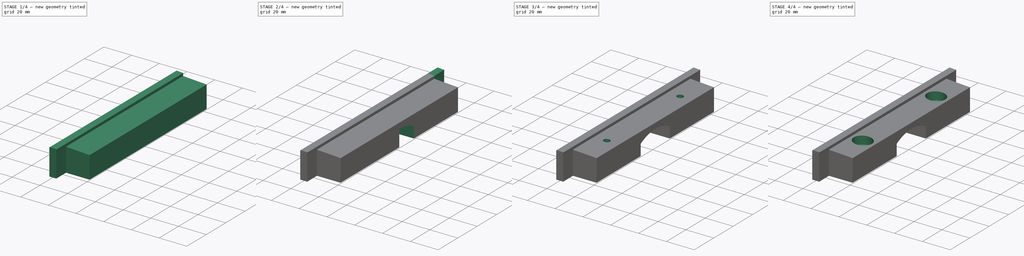
[diagram: build sequence overview — one tinted view per stage of 4, left to right]
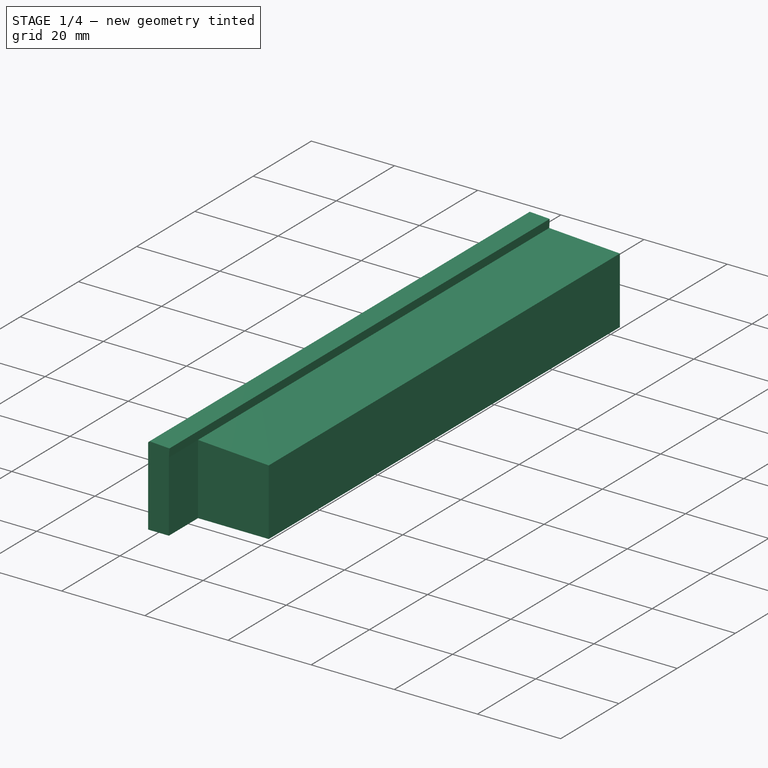
[diagram: stage 1 of 4 — iso view after this stage's code; geometry added in this stage tinted green]
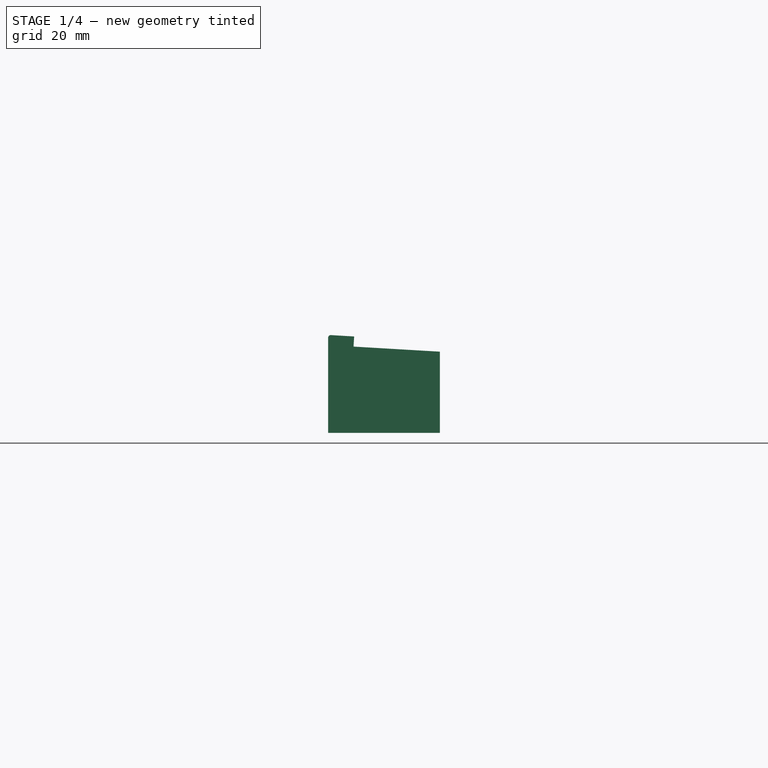
[diagram: stage 1 of 4 — front view after this stage's code; geometry added in this stage tinted green]
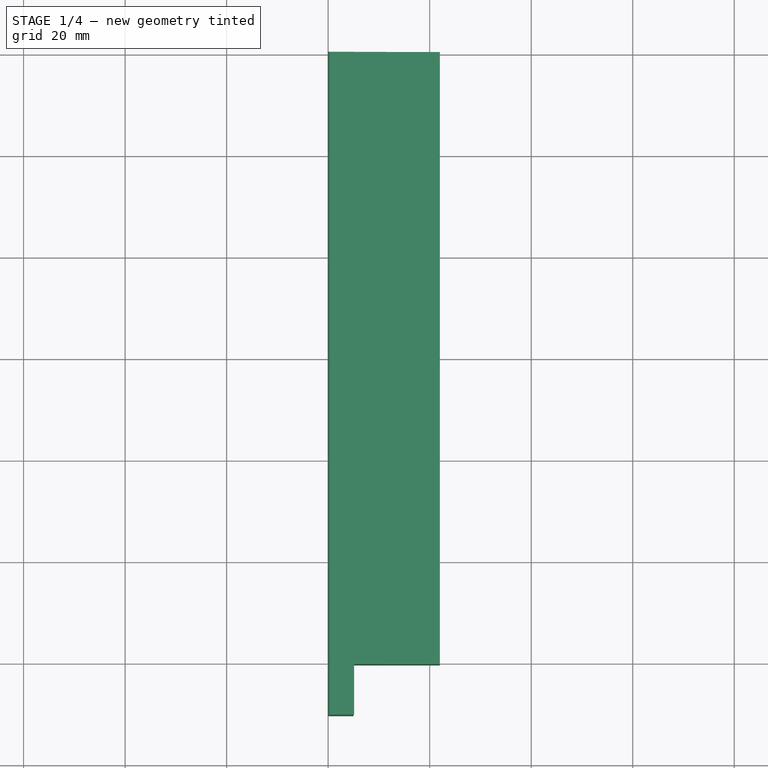
[diagram: stage 1 of 4 — top view after this stage's code; geometry added in this stage tinted green]
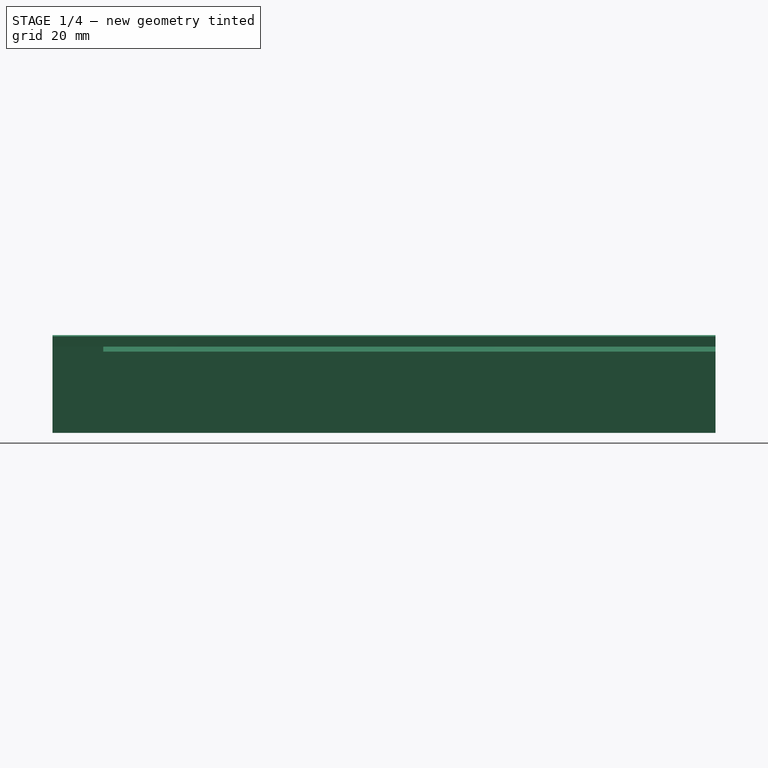
[diagram: stage 1 of 4 — right view after this stage's code; geometry added in this stage tinted green]
FCSTD DOCUMENT  (FreeCAD 0.18RUnknown)
Label: upper_brain_foot
License: All rights reserved
LicenseURL: http://en.wikipedia.org/wiki/All_rights_reserved
objects: Sketcher::SketchObject×6, PartDesign::Mirrored×4, PartDesign::Pocket×3, PartDesign::Pad×2, PartDesign::Plane×1, PartDesign::Body×1
note: 22 computed .brp shape members not serialized (recipe doc carries the construction recipe); baked Part::Feature solids carry a one-line shape summary decoded from their .brp

FEATURE [Sketcher::SketchObject] Sketch
  MapMode = 5
  Placement = pos=(0,0,0) rot=(1,0,0;1.5708rad)
  Support = -> [XZ_Plane]
  sketch-geometry (7):
    g0: LineSegment StartX=0 StartY=0 StartZ=0 EndX=0 EndY=18.7673 EndZ=0
    g1: LineSegment StartX=0.529353 StartY=19.2664 StartZ=0 EndX=5.11744 EndY=18.9965 EndZ=0
    g2: LineSegment StartX=5.11744 StartY=18.9965 StartZ=0 EndX=5 EndY=17 EndZ=0
    g3: LineSegment StartX=5 StartY=17 StartZ=0 EndX=22 EndY=16 EndZ=0
    g4: LineSegment StartX=22 StartY=16 StartZ=0 EndX=22 EndY=0 EndZ=0
    g5: LineSegment StartX=22 StartY=0 StartZ=0 EndX=0 EndY=0 EndZ=0
    g6: ArcOfCircle CenterX=0.5 CenterY=18.7673 CenterZ=0 NormalX=0 NormalY=0 NormalZ=1 AngleXU=0 Radius=0.5 StartAngle=1.51206 EndAngle=3.14159
  constraints (22):
    c: PointOnObject(g0,g-2)
    c: PointOnObject(g0,g-1)
    c: Horizontal(g5)
    c: Vertical(g0)
    c: Coincident(g5,g0)
    c: Vertical(g4)
    c: Coincident(g2,g3)
    c: Coincident(g5,g4)
    c: Coincident(g4,g3)
    c: Parallel(g1,g3)
    c: Angle(g3,g2) = 1.5708
    c: Coincident(g2,g1)
    c: Coincident(g0,g6)
    c: Coincident(g1,g6)
    c: Radius(g6) = 0.5
    c: Distance(g2) = 2
    c: DistanceY(g4,g3) = 16
    c: DistanceY(g0,g2) = 17
    c: DistanceX(g2,g3) = 17
    c: Tangent(g6,g0)
    c: DistanceX(g0,g4) = 22
    c: Tangent(g6,g1)
FEATURE [PartDesign::Pad] Pad
  Length = 60.3
  Length2 = 60.3
  Placement = pos=(0,0,0) rot=(1,0,0;1.5708rad)
  Profile = -> Sketch
  Type = 4
FEATURE [Sketcher::SketchObject] Sketch001  label="Core"
  MapMode = 5
  Placement = pos=(0,-60.3,4.02e-14) rot=(1,0,0;1.5708rad)
  Support = -> [Pad]
FEATURE [Sketcher::SketchObject] Sketch002  label="Flankenstein"
  ExternalGeometry = -> [Pad]
  MapMode = 5
  Placement = pos=(0,-60.3,4.02e-14) rot=(1,0,0;1.5708rad)
  Support = -> [Pad]
  sketch-geometry (6):
    g0: LineSegment StartX=2.1914e-11 StartY=18.7673 StartZ=0 EndX=0 EndY=0 EndZ=0
    g1: LineSegment StartX=0 StartY=0 StartZ=0 EndX=5 EndY=0 EndZ=0
    g2: LineSegment StartX=5 StartY=0 StartZ=0 EndX=5 EndY=17 EndZ=0
    g3: LineSegment StartX=5 StartY=17 StartZ=0 EndX=5.11744 EndY=18.9965 EndZ=0
    g4: LineSegment StartX=5.11744 StartY=18.9965 StartZ=0 EndX=0.529353 EndY=19.2664 EndZ=0
    g5: ArcOfCircle CenterX=0.5 CenterY=18.7673 CenterZ=0 NormalX=0 NormalY=0 NormalZ=1 AngleXU=0 Radius=0.5 StartAngle=1.51206 EndAngle=3.14159
  constraints (14):
    c: Coincident(g0,g-5)
    c: Coincident(g0,g-1)
    c: Coincident(g1,g0)
    c: Coincident(g-4,g2)
    c: Coincident(g3,g2)
    c: Coincident(g3,g-4)
    c: Coincident(g4,g3)
    c: Coincident(g4,g-3)
    c: Coincident(g5,g0)
    c: Coincident(g5,g4)
    c: Radius(g5) = 0.5
    c: Vertical(g2)
    c: PointOnObject(g2,g-6)
    c: Coincident(g1,g2)
FEATURE [PartDesign::Pad] Pad001  label="Flankenpad"
  BaseFeature = -> Pad
  Length = 10
  Length2 = 100
  Placement = pos=(0,0,0) rot=(1,0,0;1.5708rad)
  Profile = -> Sketch002
  Type = 0
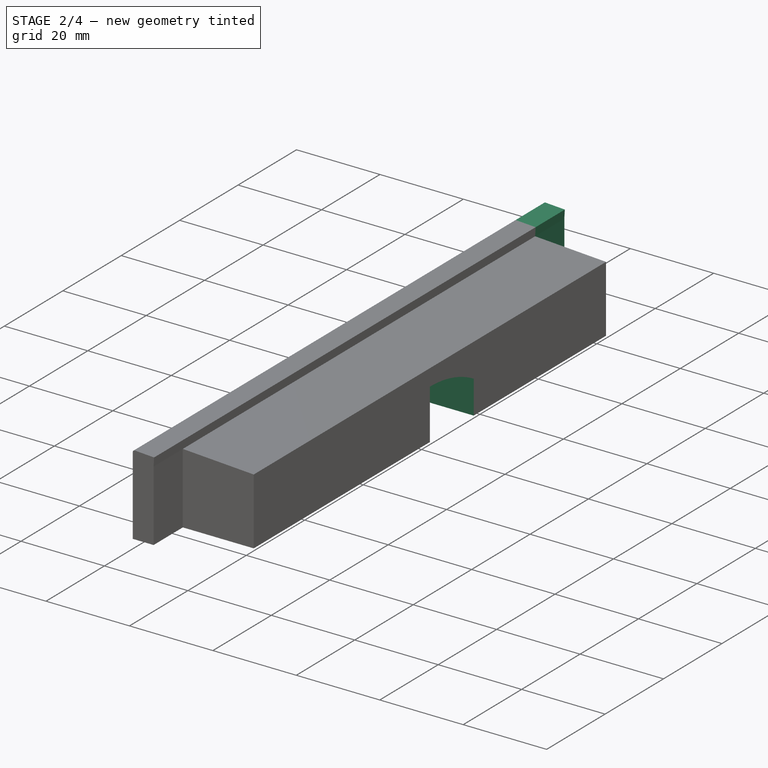
[diagram: stage 2 of 4 — iso view after this stage's code; geometry added in this stage tinted green]
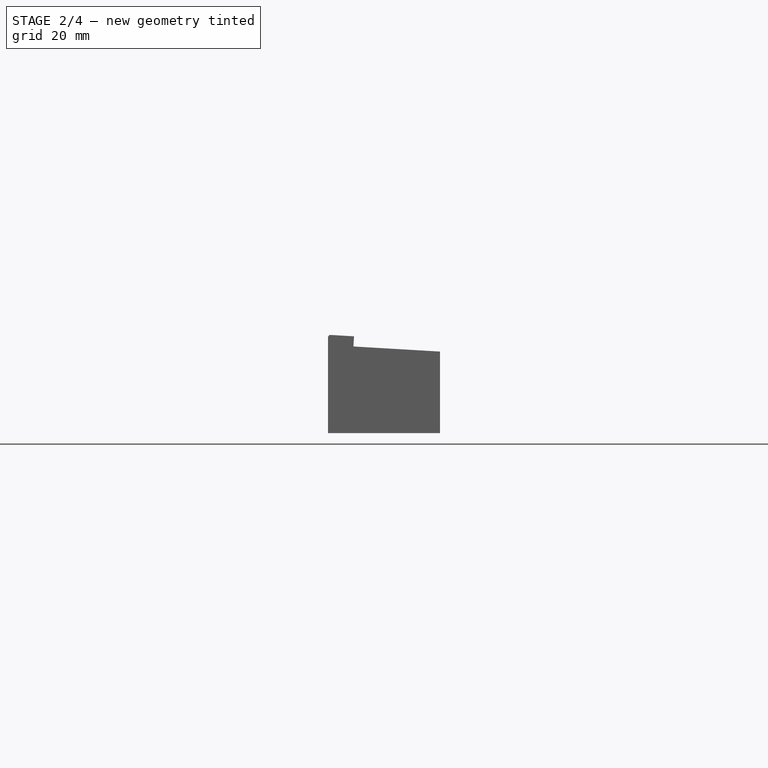
[diagram: stage 2 of 4 — front view after this stage's code; geometry added in this stage tinted green]
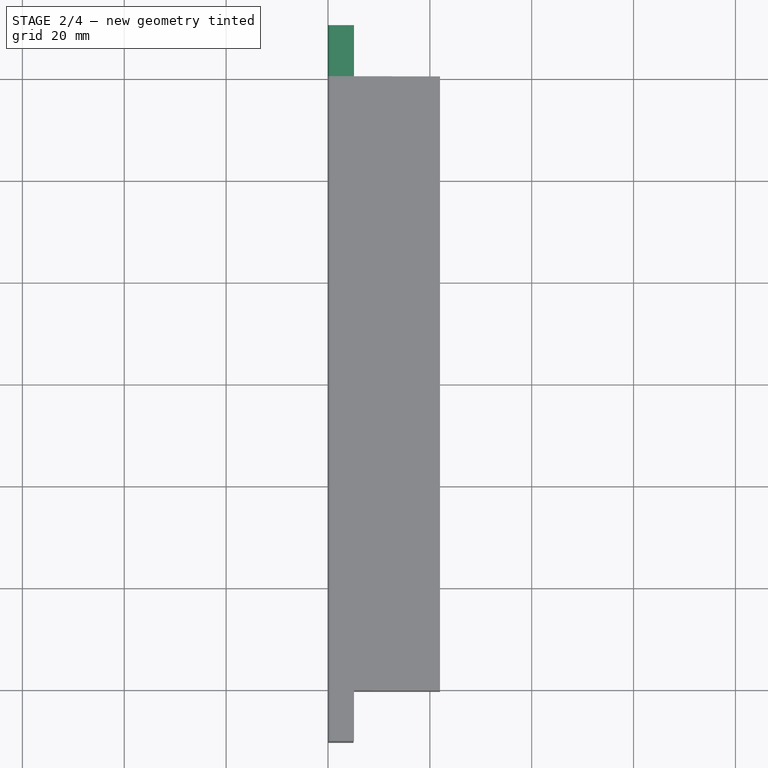
[diagram: stage 2 of 4 — top view after this stage's code; geometry added in this stage tinted green]
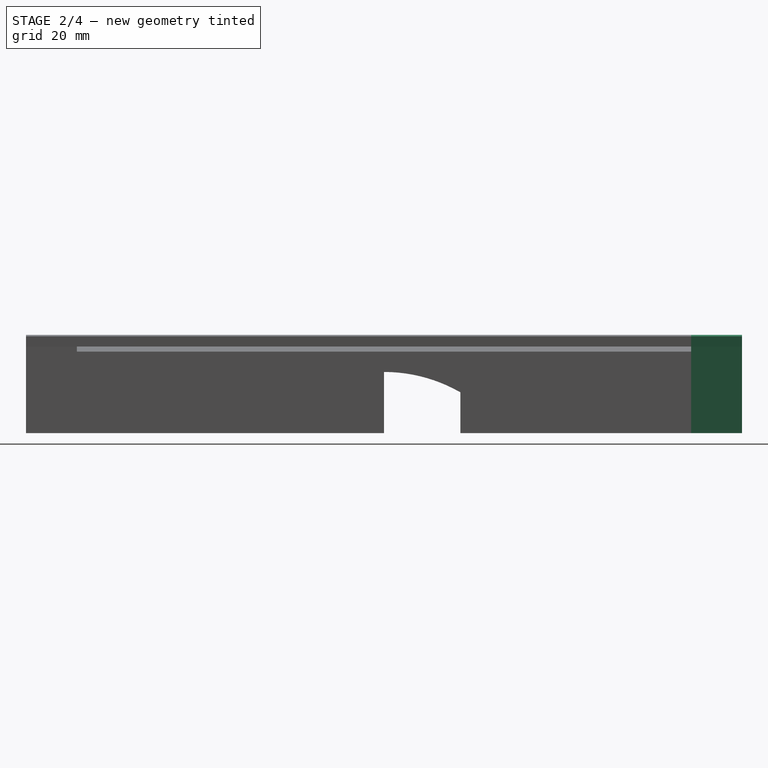
[diagram: stage 2 of 4 — right view after this stage's code; geometry added in this stage tinted green]
FEATURE [PartDesign::Mirrored] Mirrored
  BaseFeature = -> Pad001
  MirrorPlane = -> XZ_Plane
  Originals = -> [Pad001]
  Placement = pos=(0,0,0) rot=(1,0,0;1.5708rad)
FEATURE [Sketcher::SketchObject] Sketch004  label="Tunnel"
  MapMode = 5
  Placement = pos=(22,0,0) rot=(0.707107,0,0.707107;3.14159rad)
  Support = -> [Mirrored]
  sketch-geometry (5):
    g0: LineSegment StartX=0 StartY=-3.41437e-11 StartZ=0 EndX=0 EndY=-15 EndZ=0
    g1: LineSegment StartX=0 StartY=-15 StartZ=0 EndX=8 EndY=-15 EndZ=0
    g2: LineSegment StartX=0 StartY=-3.41437e-11 StartZ=0 EndX=12 EndY=-3.41437e-11 EndZ=0
    g3: ArcOfCircle CenterX=-18.1251 CenterY=1.65634e-05 CenterZ=0 NormalX=0 NormalY=0 NormalZ=1 AngleXU=0 Radius=30.1251 StartAngle=5.76198 EndAngle=6.28318
    g4: LineSegment [constr] StartX=12 StartY=-3.41437e-11 StartZ=0 EndX=12 EndY=-15 EndZ=0
  constraints (15):
    c: Coincident(g2,g0)
    c: Coincident(g0,g-1)
    c: Vertical(g0)
    c: Horizontal(g2)
    c: Horizontal(g1)
    c: Coincident(g1,g0)
    c: Coincident(g3,g1)
    c: Coincident(g3,g2)
    c: DistanceY(g0,g0) = 15
    c: DistanceX(g1,g1) = 8
    c: DistanceX(g2,g2) = 12
    c: Vertical(g4)
    c: Coincident(g4,g2)
    c: Tangent(g3,g4)
    c: DistanceY(g4,g4) = 15
FEATURE [PartDesign::Pocket] Pocket  label="TunnelPocket"
  BaseFeature = -> Mirrored
  Length = 0
  Length2 = 100
  Placement = pos=(0,0,0) rot=(1,0,0;1.5708rad)
  Profile = -> Sketch004
  Type = 1
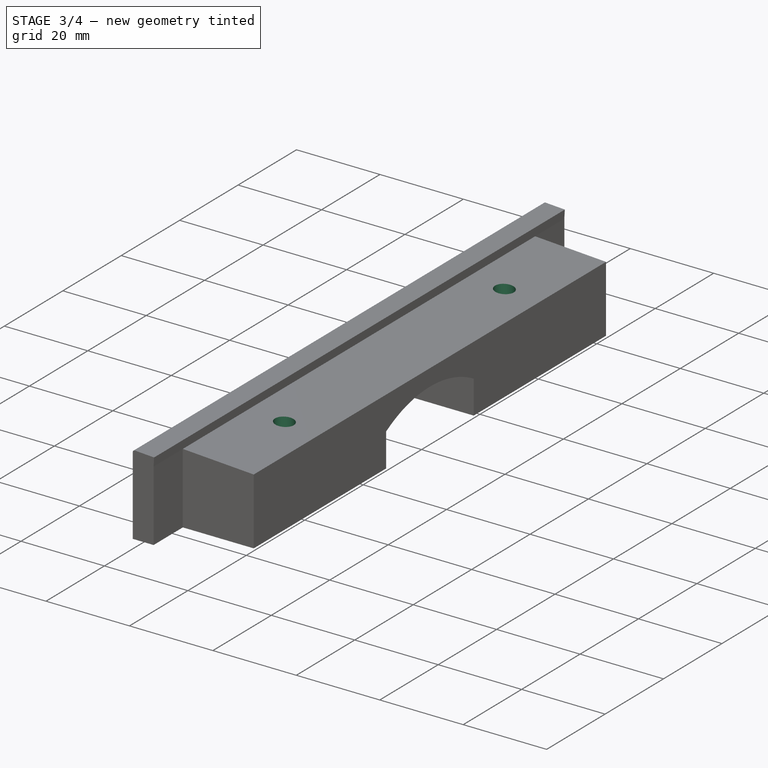
[diagram: stage 3 of 4 — iso view after this stage's code; geometry added in this stage tinted green]
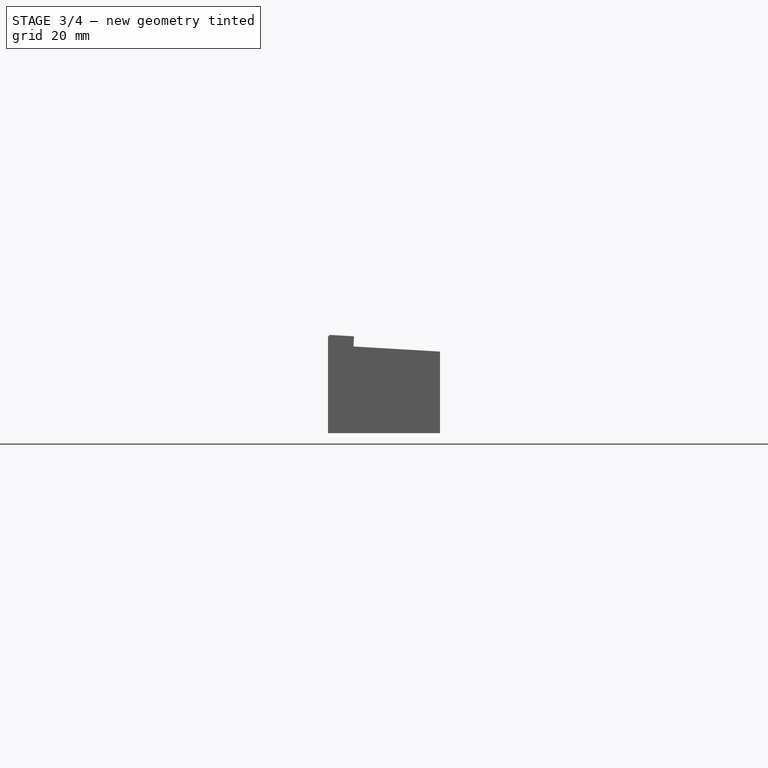
[diagram: stage 3 of 4 — front view after this stage's code; geometry added in this stage tinted green]
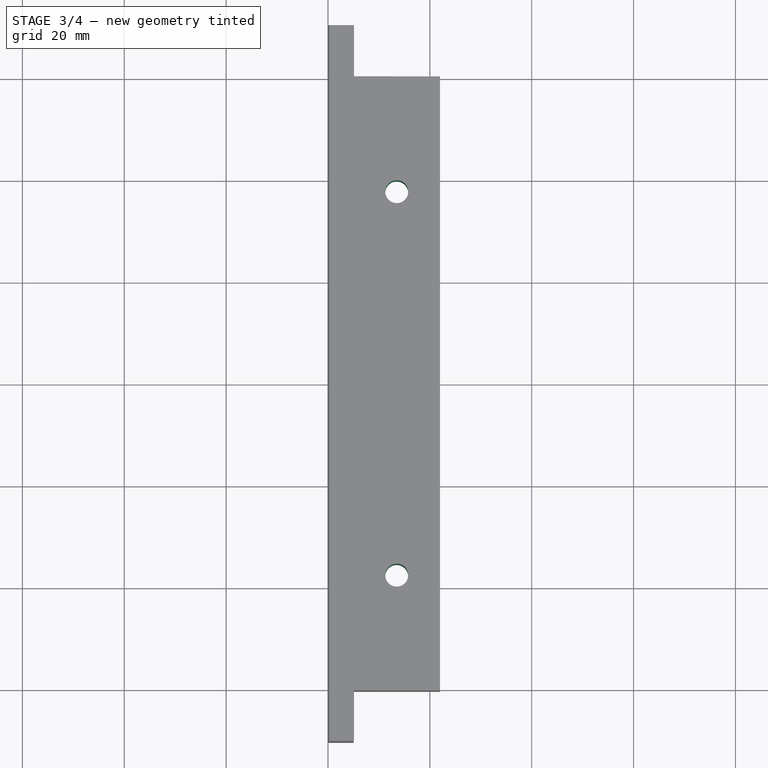
[diagram: stage 3 of 4 — top view after this stage's code; geometry added in this stage tinted green]
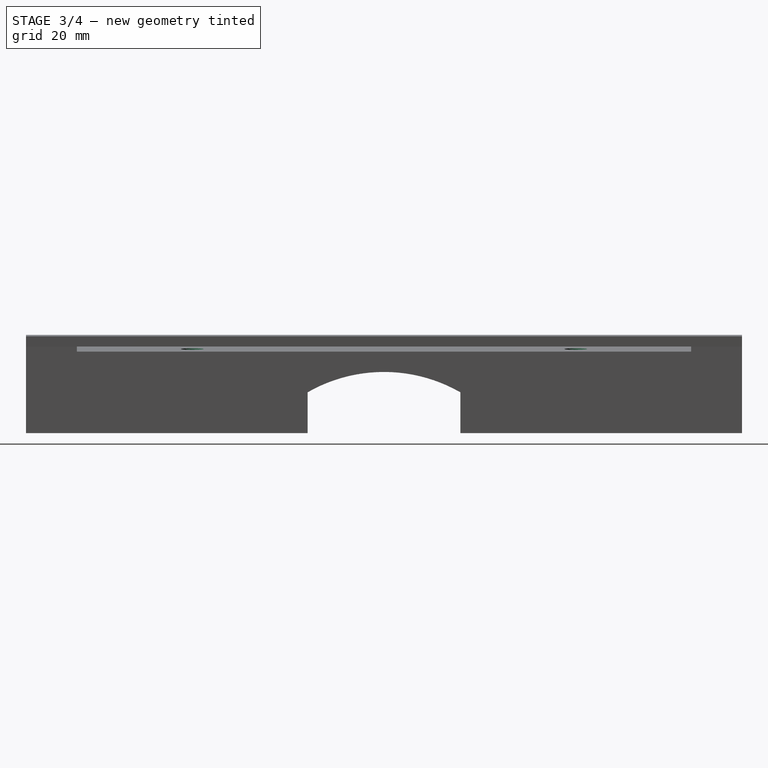
[diagram: stage 3 of 4 — right view after this stage's code; geometry added in this stage tinted green]
FEATURE [PartDesign::Mirrored] Mirrored001  label="MirroredTunnel"
  BaseFeature = -> Pocket
  MirrorPlane = -> XZ_Plane
  Originals = -> [Pocket]
  Placement = pos=(0,0,0) rot=(1,0,0;1.5708rad)
FEATURE [Sketcher::SketchObject] Sketch005  label="Skruvhal"
  ExternalGeometry = -> [Mirrored001]
  MapMode = 5
  Placement = pos=(0,0,0) rot=(1,0,0;3.14159rad)
  Support = -> [Mirrored001]
  sketch-geometry (4):
    g0: LineSegment [constr] StartX=5 StartY=60.3 StartZ=0 EndX=22 EndY=15 EndZ=0
    g1: LineSegment [constr] StartX=22 StartY=60.3 StartZ=0 EndX=5 EndY=15 EndZ=0
    g2: Circle CenterX=13.5 CenterY=37.65 CenterZ=0 NormalX=0 NormalY=0 NormalZ=1 AngleXU=0 Radius=2.25
    g3: LineSegment [constr] StartX=5 StartY=60.3 StartZ=0 EndX=5 EndY=15 EndZ=0
  constraints (10):
    c: Coincident(g0,g-4)
    c: Coincident(g1,g-3)
    c: PointOnObject(g2,g0)
    c: PointOnObject(g2,g1)
    c: Diameter(g2) = 4.5
    c: Coincident(g0,g-5)
    c: Vertical(g3)
    c: Coincident(g3,g0)
    c: PointOnObject(g3,g-4)
    c: Coincident(g1,g3)
FEATURE [PartDesign::Pocket] Pocket001  label="SkruvhalPocket"
  BaseFeature = -> Mirrored001
  Length = 0
  Length2 = 100
  Placement = pos=(0,0,0) rot=(1,0,0;1.5708rad)
  Profile = -> Sketch005
  Type = 3
  UpToFace = -> Mirrored001 [Face9]
FEATURE [PartDesign::Mirrored] Mirrored002  label="MirroredSkruvhal"
  BaseFeature = -> Pocket001
  MirrorPlane = -> XZ_Plane
  Originals = -> [Pocket001]
  Placement = pos=(0,0,0) rot=(1,0,0;1.5708rad)
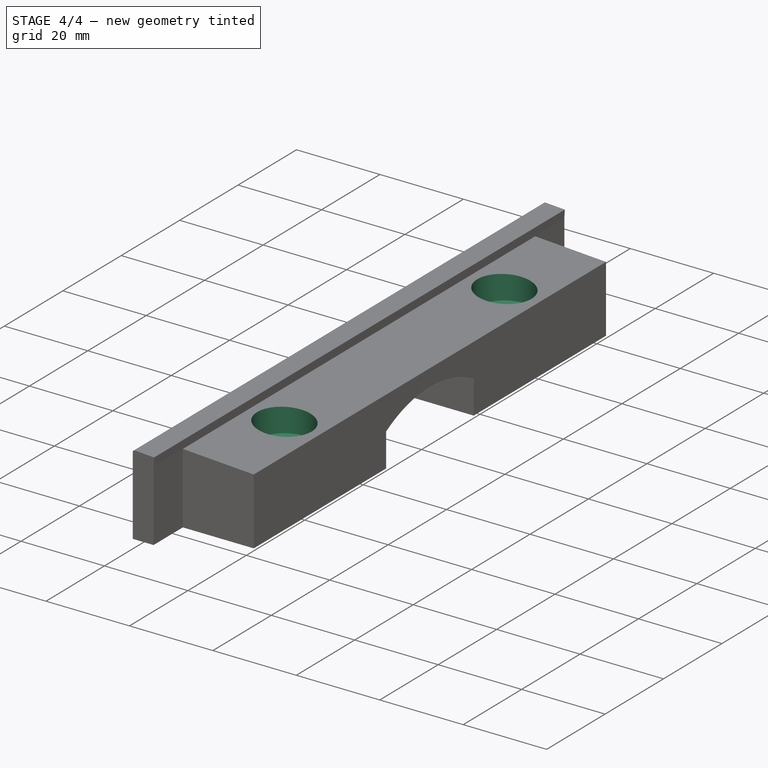
[diagram: stage 4 of 4 — iso view after this stage's code; geometry added in this stage tinted green]
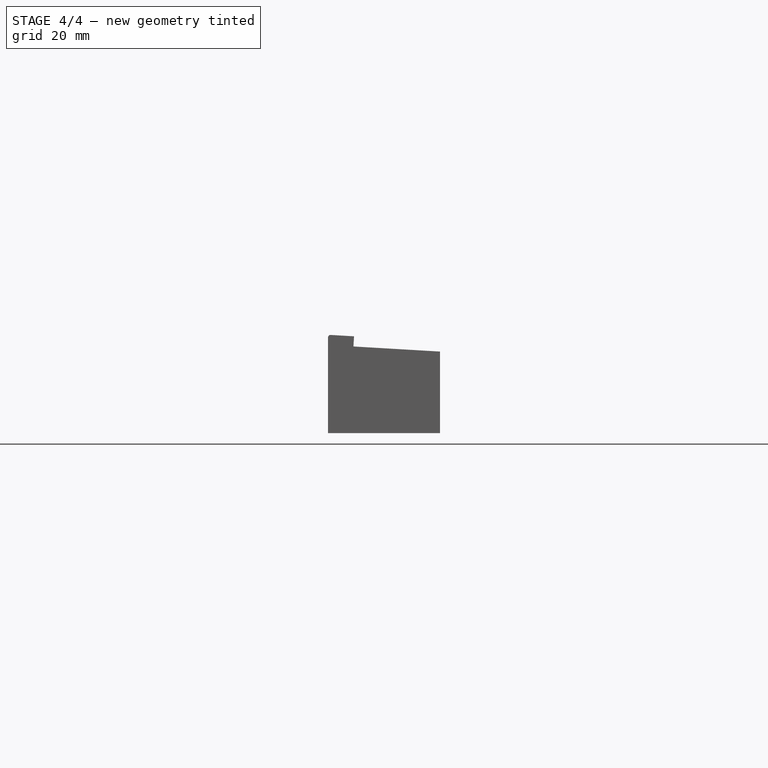
[diagram: stage 4 of 4 — front view after this stage's code; geometry added in this stage tinted green]
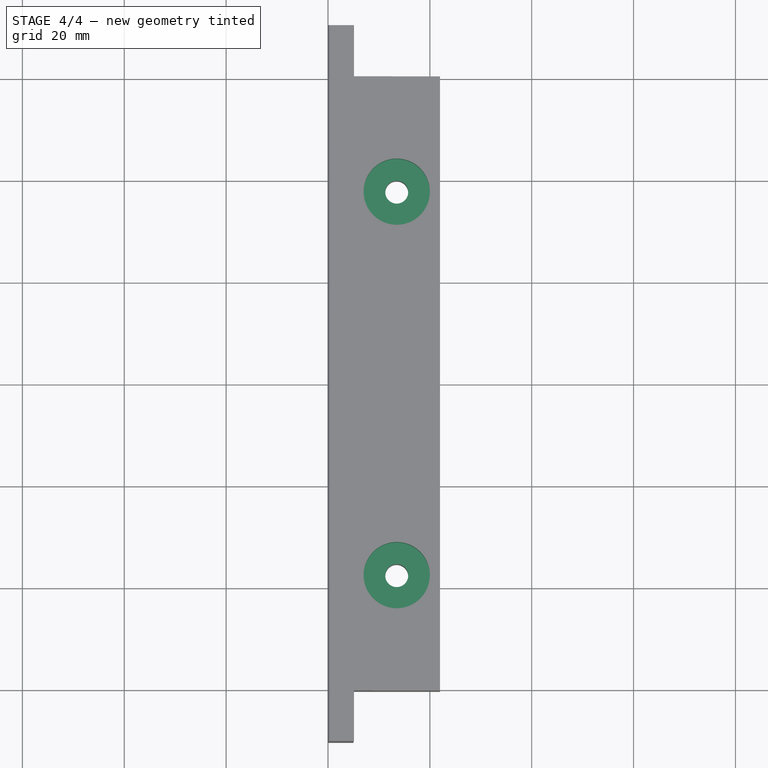
[diagram: stage 4 of 4 — top view after this stage's code; geometry added in this stage tinted green]
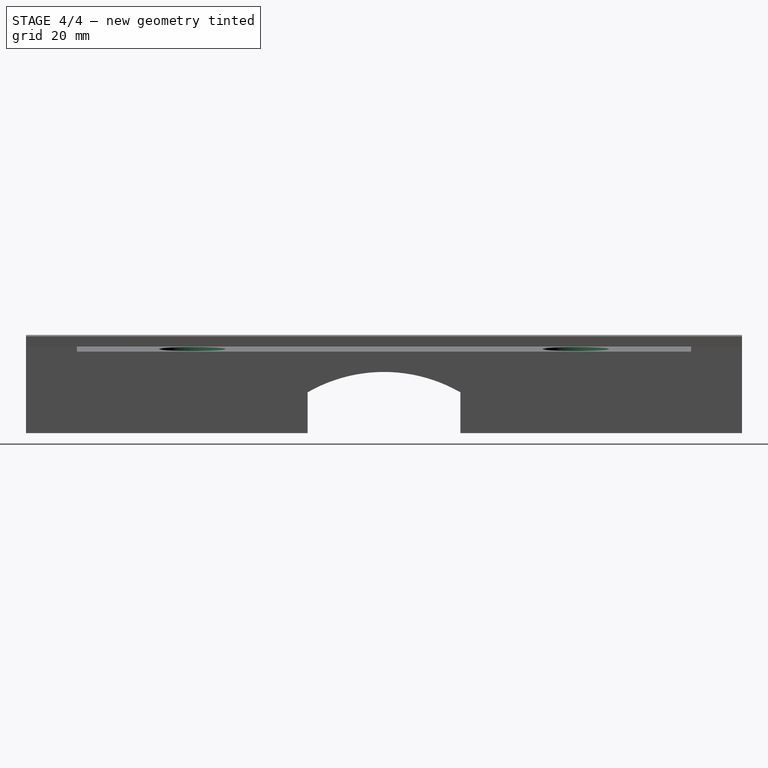
[diagram: stage 4 of 4 — right view after this stage's code; geometry added in this stage tinted green]
FEATURE [PartDesign::Plane] DatumPlane
  AttachmentOffset = pos=(0,0,-17) rot=(0,0,1;0rad)
  Length = 45.4152
  MapMode = 5
  Placement = pos=(0,3.4e-14,17) rot=(1,0,0;3.14159rad)
  ResizeMode = 0
  Support = -> [Mirrored002]
  Width = 154.015
FEATURE [Sketcher::SketchObject] Sketch006  label="Sink"
  ExternalGeometry = -> [Mirrored002]
  MapMode = 5
  Placement = pos=(0,3.4e-14,17) rot=(1,0,0;3.14159rad)
  Support = -> [DatumPlane]
  sketch-geometry (1):
    g0: Circle CenterX=13.5 CenterY=37.65 CenterZ=0 NormalX=0 NormalY=0 NormalZ=1 AngleXU=0 Radius=6.5
  constraints (2):
    c: Coincident(g0,g-3)
    c: Diameter(g0) = 13
FEATURE [PartDesign::Pocket] Pocket002  label="SinkPocket"
  BaseFeature = -> Mirrored002
  Length = 6
  Length2 = 100
  Placement = pos=(0,0,0) rot=(1,0,0;1.5708rad)
  Profile = -> Sketch006
  Reversed = true
  Type = 0
FEATURE [PartDesign::Mirrored] Mirrored003  label="MirroredSink"
  BaseFeature = -> Pocket002
  MirrorPlane = -> XZ_Plane
  Originals = -> [Pocket002]
  Placement = pos=(0,0,0) rot=(1,0,0;1.5708rad)
FEATURE [PartDesign::Body] Body  label="Main bit profile"
  Group = -> [Sketch,Pad,Sketch001,Sketch002,Pad001,Mirrored,Sketch004,Pocket,Mirrored001,Sketch005,Pocket001,Mirrored002,DatumPlane,Sketch006,Pocket002,Mirrored003]
  Origin = -> Origin
  Tip = -> Mirrored003
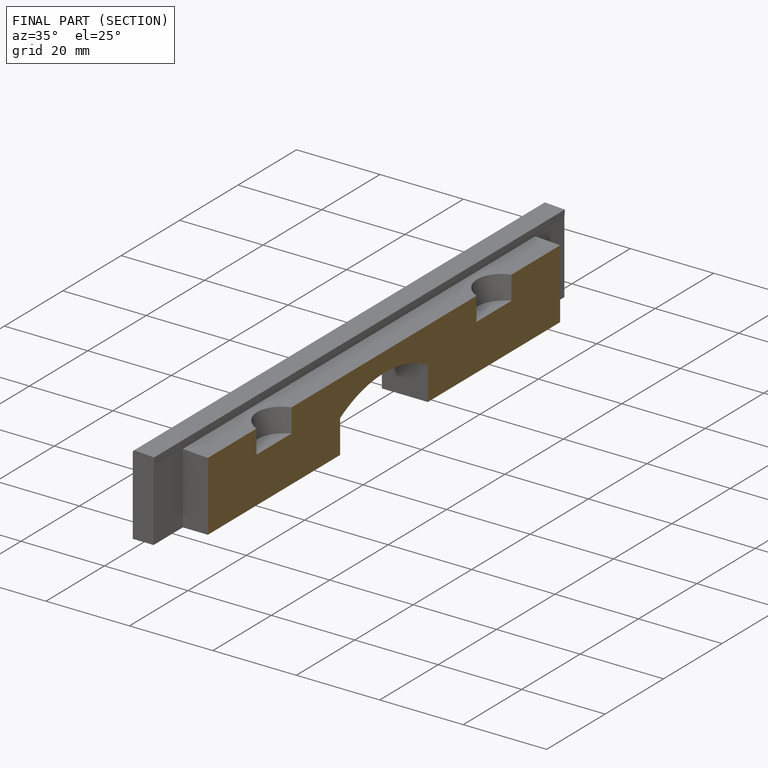
[diagram: finished part — half-section view (interior)]
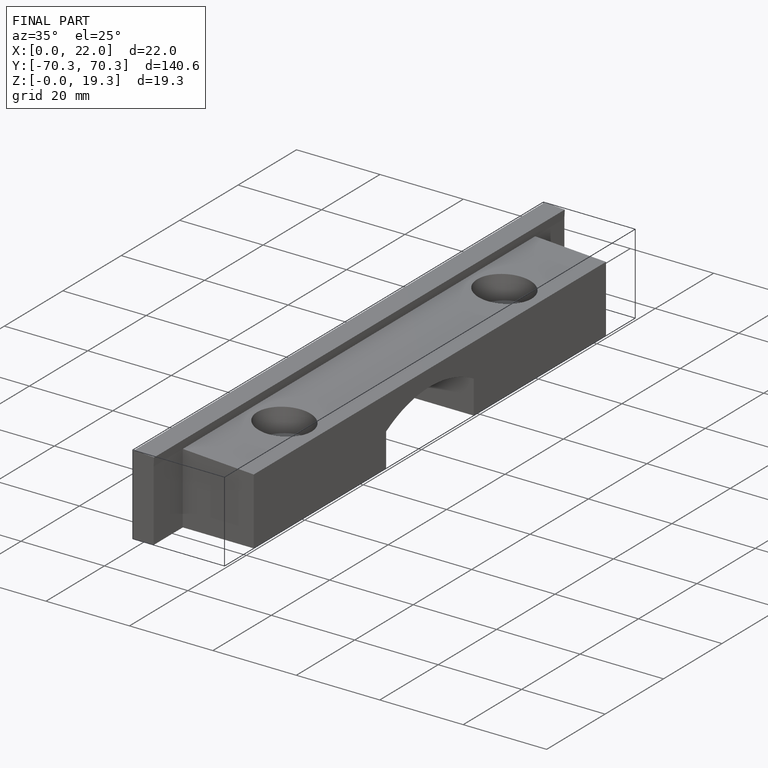
[diagram: finished part — iso view with bounding-box wireframe]
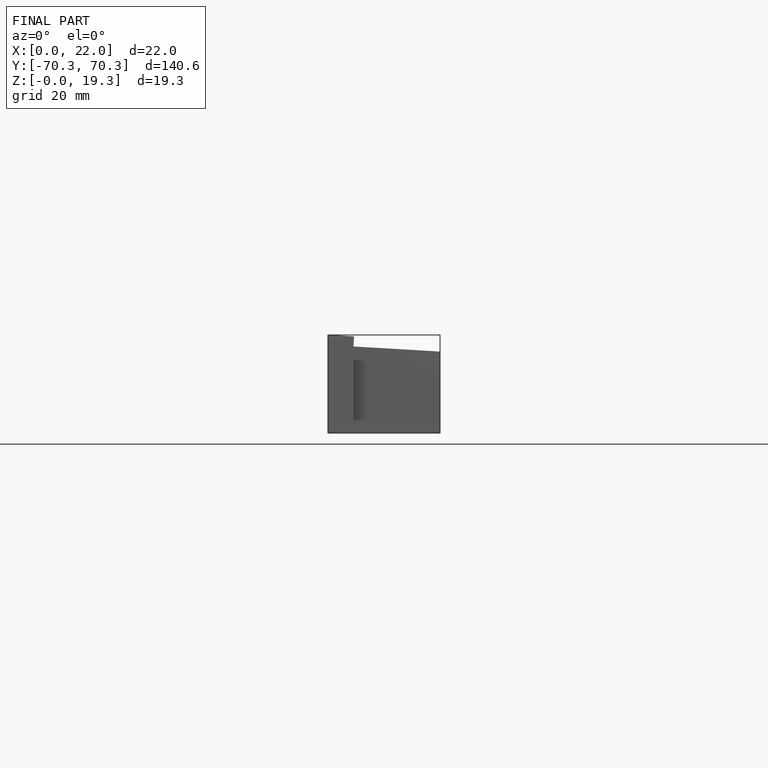
[diagram: finished part — front view with bounding-box wireframe]
